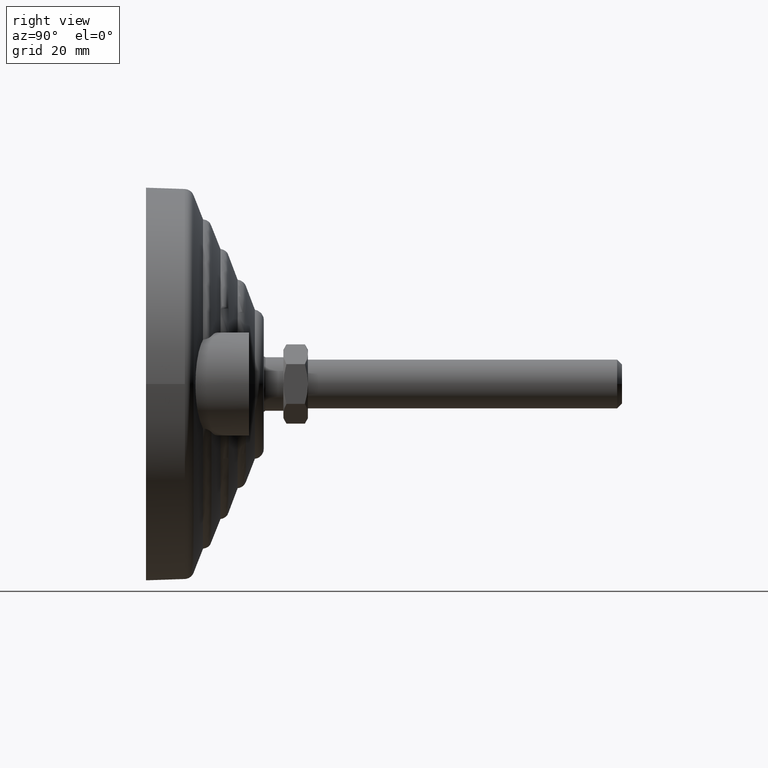
[diagram: clean part render]
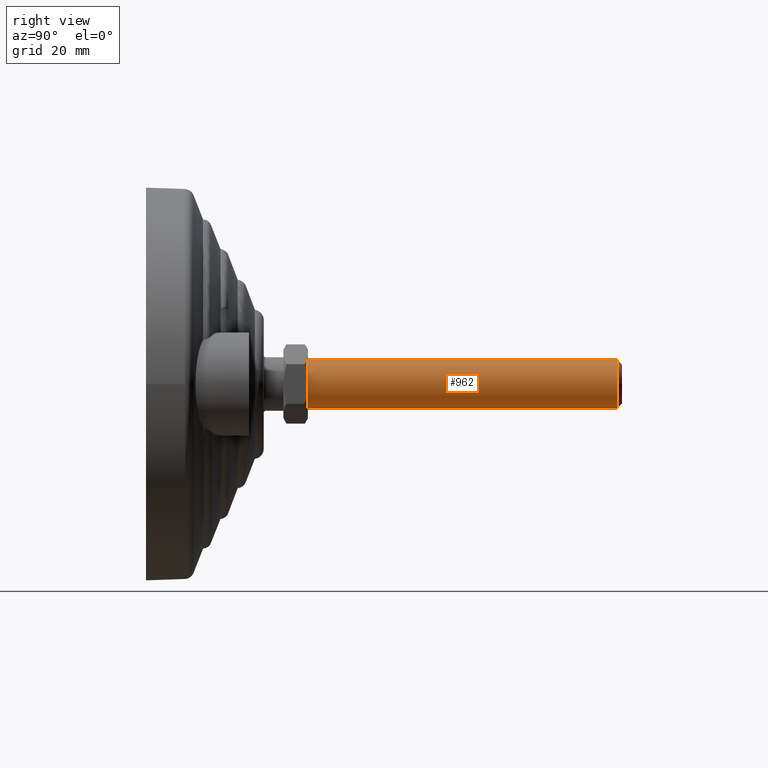
[diagram: same view with one face highlighted and labeled with its STEP entity id]
A machine part, right view. The second image highlights one B-rep face of the part: STEP entity #962.
In plain terms, the highlighted cylindrical surface (bore or boss wall) has radius 5 mm, axis along (0, -1, 0).
Its self-contained STEP definition (entity closure, byte-faithful):
#170=FACE_OUTER_BOUND('',#230,.T.);
#230=EDGE_LOOP('',(#819,#820,#821,#822,#823,#824));
#272=LINE('',#1863,#296);
#296=VECTOR('',#1370,5.00000000000001);
#352=CIRCLE('',#1128,5.00000000000001);
#353=CIRCLE('',#1129,5.00000000000001);
#355=CIRCLE('',#1133,5.00000000000001);
#356=CIRCLE('',#1134,5.00000000000001);
#441=VERTEX_POINT('',#1850);
#442=VERTEX_POINT('',#1851);
#444=VERTEX_POINT('',#1859);
#445=VERTEX_POINT('',#1860);
#570=EDGE_CURVE('',#441,#442,#352,.T.);
#571=EDGE_CURVE('',#442,#441,#353,.T.);
#574=EDGE_CURVE('',#444,#445,#355,.T.);
#575=EDGE_CURVE('',#445,#444,#356,.T.);
#576=EDGE_CURVE('',#445,#442,#272,.T.);
#819=ORIENTED_EDGE('',*,*,#574,.F.);
#820=ORIENTED_EDGE('',*,*,#575,.F.);
#821=ORIENTED_EDGE('',*,*,#576,.T.);
#822=ORIENTED_EDGE('',*,*,#570,.F.);
#823=ORIENTED_EDGE('',*,*,#571,.F.);
#824=ORIENTED_EDGE('',*,*,#576,.F.);
#928=CYLINDRICAL_SURFACE('',#1132,5.00000000000001);
#962=ADVANCED_FACE('',(#170),#928,.T.);
#1128=AXIS2_PLACEMENT_3D('',#1852,#1355,#1356);
#1129=AXIS2_PLACEMENT_3D('',#1853,#1357,#1358);
#1132=AXIS2_PLACEMENT_3D('',#1858,#1364,#1365);
#1133=AXIS2_PLACEMENT_3D('',#1861,#1366,#1367);
#1134=AXIS2_PLACEMENT_3D('',#1862,#1368,#1369);
#1355=DIRECTION('center_axis',(-3.13558628617819E-16,1.,0.));
#1356=DIRECTION('ref_axis',(-1.,-3.13456360540168E-16,0.));
#1357=DIRECTION('center_axis',(-3.13558628617819E-16,1.,0.));
#1358=DIRECTION('ref_axis',(-1.,-3.13456360540168E-16,0.));
#1364=DIRECTION('center_axis',(3.13558628617819E-16,-1.,0.));
#1365=DIRECTION('ref_axis',(1.,3.13456360540168E-16,0.));
#1366=DIRECTION('center_axis',(3.13558628617819E-16,-1.,0.));
#1367=DIRECTION('ref_axis',(1.,3.13456360540168E-16,0.));
#1368=DIRECTION('center_axis',(3.13558628617819E-16,-1.,0.));
#1369=DIRECTION('ref_axis',(1.,3.13456360540168E-16,0.));
#1370=DIRECTION('',(-3.13558628617819E-16,1.,0.));
#1850=CARTESIAN_POINT('',(4.99999999999999,96.,-6.12323399573677E-16));
#1851=CARTESIAN_POINT('',(-5.00000000000002,96.,-6.12323399573677E-16));
#1852=CARTESIAN_POINT('Origin',(-1.17935678384319E-14,96.,0.));
#1853=CARTESIAN_POINT('Origin',(-1.17935678384319E-14,96.,0.));
#1858=CARTESIAN_POINT('Origin',(-7.23971104117073E-15,81.4768570160712,
0.));
#1859=CARTESIAN_POINT('',(5.00000000000002,33.,0.));
#1860=CARTESIAN_POINT('',(-5.,33.,-6.12323399573677E-16));
#1861=CARTESIAN_POINT('Origin',(7.96062576449065E-15,33.,0.));
#1862=CARTESIAN_POINT('Origin',(7.96062576449065E-15,33.,0.));
#1863=CARTESIAN_POINT('',(-5.00000000000001,81.4768570160712,-6.12323399573677E-16));